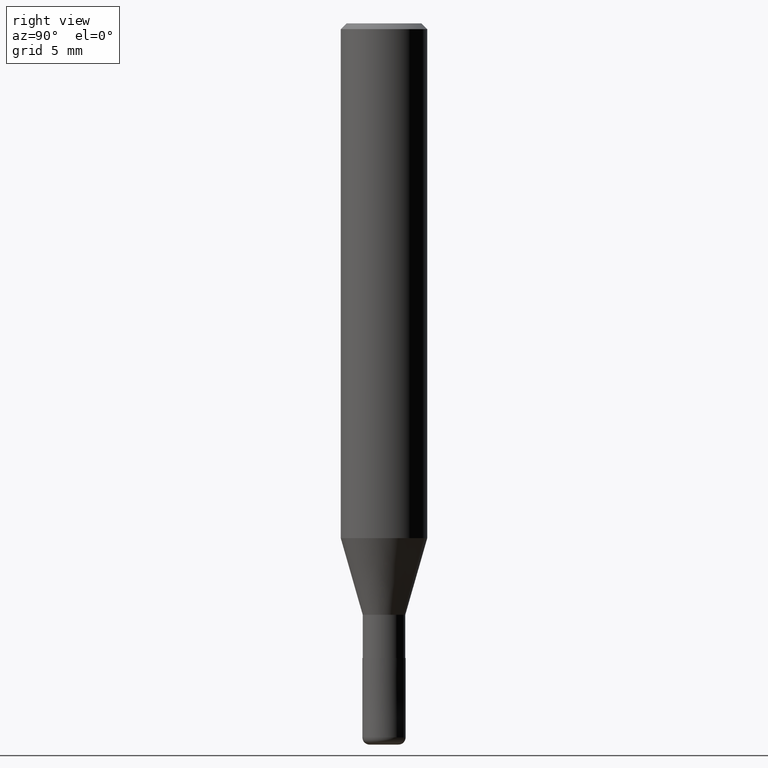
[diagram: clean part render]
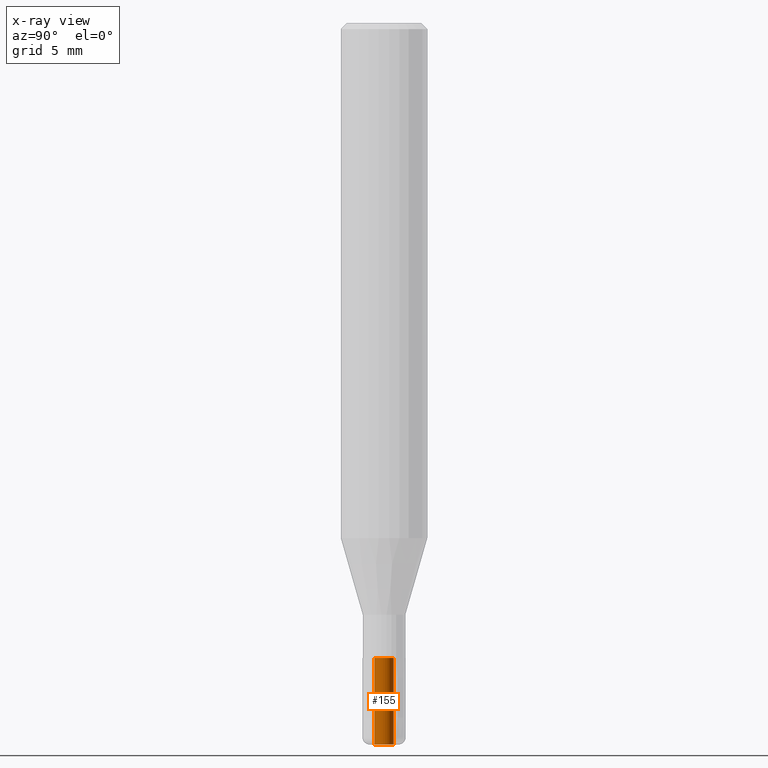
[diagram: x-ray — body ghosted, one internal face saturated and labeled with its STEP entity id]
A machine part, right view, then the same camera in x-ray: the body is ghosted and one INTERNAL B-rep face — a face not visible from any outside direction — is saturated and labeled: STEP entity #155.
In plain terms, the highlighted cylindrical surface (edge-blend (fillet) strip) has radius 0.675 mm, axis along (-0, -0, 1).
Its self-contained STEP definition (entity closure, byte-faithful):
#155=ADVANCED_FACE('',(#361),#362,.F.);
#159=EDGE_CURVE('',#223,#251,#366,.T.);
#193=EDGE_CURVE('',#221,#251,#404,.T.);
#221=VERTEX_POINT('',#434);
#223=VERTEX_POINT('',#436);
#251=VERTEX_POINT('',#468);
#303=VERTEX_POINT('',#532);
#305=EDGE_CURVE('',#221,#303,#534,.T.);
#307=EDGE_CURVE('',#303,#223,#536,.T.);
#361=FACE_OUTER_BOUND('',#590,.T.);
#362=CYLINDRICAL_SURFACE('',#591,0.675);
#366=LINE('',#597,#598);
#404=CIRCLE('',#648,0.675);
#434=CARTESIAN_POINT('',(0.0,0.675,-44.0));
#436=CARTESIAN_POINT('',(8.26609288830105E-017,-0.675,-50.0));
#468=CARTESIAN_POINT('',(8.26609288830105E-017,-0.675,-44.0));
#532=CARTESIAN_POINT('',(0.0,0.675,-50.0));
#534=LINE('',#807,#808);
#536=CIRCLE('',#811,0.675);
#590=EDGE_LOOP('',(#849,#850,#851,#852));
#591=AXIS2_PLACEMENT_3D('',#853,#854,#855);
#597=CARTESIAN_POINT('',(8.26609288830105E-017,-0.675,-47.0));
#598=VECTOR('',#859,1.0);
#648=AXIS2_PLACEMENT_3D('',#910,#911,#912);
#807=CARTESIAN_POINT('',(-8.26609288830105E-017,0.675,-47.0));
#808=VECTOR('',#1081,1.0);
#811=AXIS2_PLACEMENT_3D('',#1082,#1083,#1084);
#849=ORIENTED_EDGE('',*,*,#305,.T.);
#850=ORIENTED_EDGE('',*,*,#307,.T.);
#851=ORIENTED_EDGE('',*,*,#159,.T.);
#852=ORIENTED_EDGE('',*,*,#193,.F.);
#853=CARTESIAN_POINT('',(0.0,0.0,-47.0));
#854=DIRECTION('',(-0.0,-0.0,1.0));
#855=DIRECTION('',(0.0,1.0,0.0));
#859=DIRECTION('',(0.0,-0.0,1.0));
#910=CARTESIAN_POINT('',(0.0,0.0,-44.0));
#911=DIRECTION('',(0.0,0.0,-1.0));
#912=DIRECTION('',(0.0,1.0,0.0));
#1081=DIRECTION('',(0.0,-0.0,-1.0));
#1082=CARTESIAN_POINT('',(0.0,0.0,-50.0));
#1083=DIRECTION('',(0.0,0.0,-1.0));
#1084=DIRECTION('',(0.0,1.0,0.0));